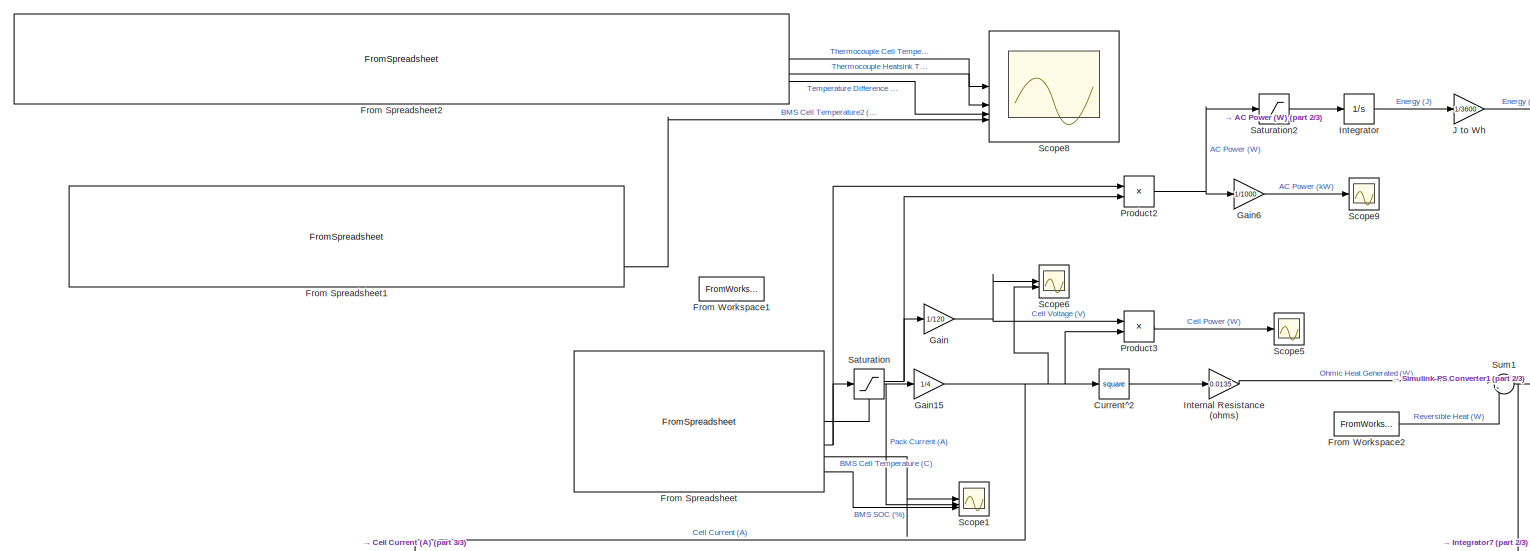
[diagram: root canvas - part 1/3, top left region]
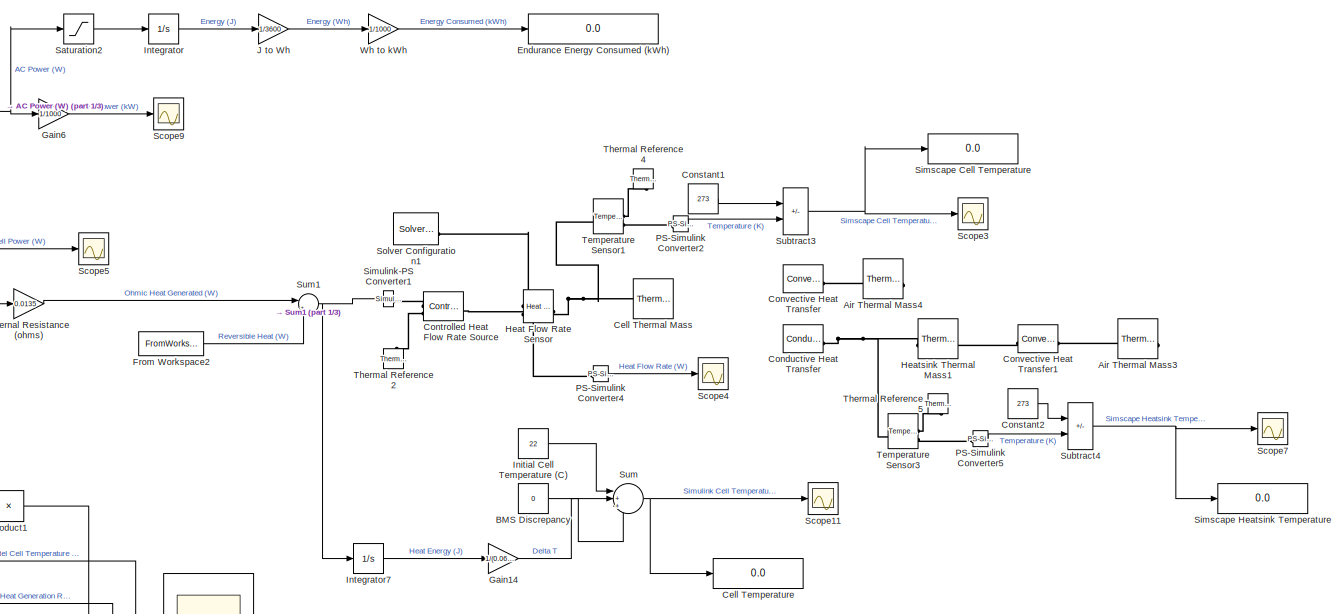
[diagram: root canvas - part 2/3, top right region]
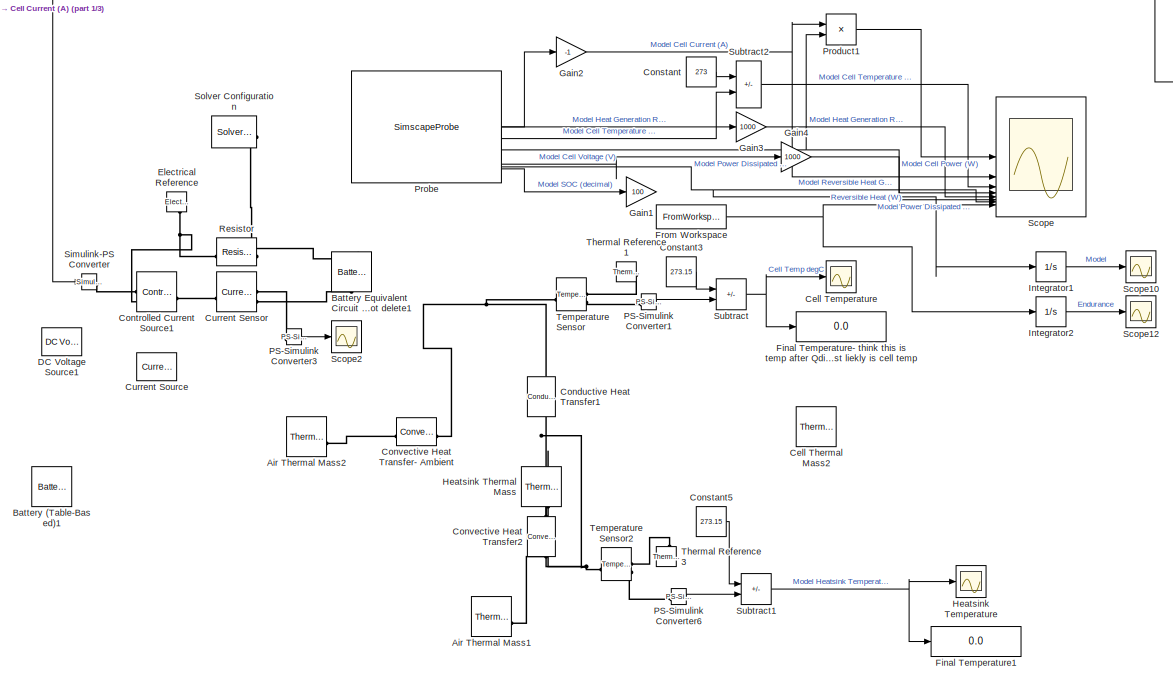
[diagram: root canvas - part 3/3, bottom center region]
MODEL slx_51ffd3849e53
KIND model
CONFIG AbsTol = auto
CONFIG EnableMultiTasking = off
CONFIG FixedStep = 0.1
CONFIG MaxStep = auto
CONFIG MinStep = auto
CONFIG RelTol = 1e-3
CONFIG SampleTimeConstraint = Unconstrained
CONFIG SolverName = FixedStepAuto
CONFIG StartTime = 503
CONFIG StopTime = 2309
BLOCK [Reference] Air Thermal Mass1  REF=fl_lib/Thermal/Thermal Elements/Thermal Mass
  Commented = on
  NameLocation = top
  SourceBlock = fl_lib/Thermal/Thermal Elements/Thermal Mass
  SourceType = Thermal Mass
BLOCK [Reference] Air Thermal Mass2  REF=fl_lib/Thermal/Thermal Elements/Thermal Mass
  Commented = on
  NameLocation = top
  SourceBlock = fl_lib/Thermal/Thermal Elements/Thermal Mass
  SourceType = Thermal Mass
BLOCK [Reference] Air Thermal Mass3  REF=fl_lib/Thermal/Thermal Elements/Thermal Mass
  Commented = on
  SourceBlock = fl_lib/Thermal/Thermal Elements/Thermal Mass
  SourceType = Thermal Mass
BLOCK [Reference] Air Thermal Mass4  REF=fl_lib/Thermal/Thermal Elements/Thermal Mass
  Commented = on
  SourceBlock = fl_lib/Thermal/Thermal Elements/Thermal Mass
  SourceType = Thermal Mass
BLOCK [Constant] BMS Discrepancy
  Value = 0
BLOCK [Reference] Battery (Table-Based)1  REF=batteryecm_lib/Battery
(Table-Based)
  AttributesFormatString = Molicel:INR_21700_P45B
  LibrarySourceBlock = batt_lib/Cells/Battery\n(Table-Based)
  NameLocation = right
  SourceBlock = batteryecm_lib/Battery\n(Table-Based)
  SourceType = Battery\n(Table-Based)
  Tag = {'toolbox/physmod/battery/shared_library/m/batteryecm_lib_parts';'Battery__Table_Based_/Molicel/INR_21700_P45B.xml'}
BLOCK [Reference] Battery Equivalent Circuit A2 do not delete1  REF=batt_lib/Cells/Battery Equivalent
Circuit
  NameLocation = right
  SourceBlock = batt_lib/Cells/Battery Equivalent\nCircuit
  SourceType = Battery Equivalent\nCircuit
BLOCK [Display] Cell Temperature
  Decimation = 1
BLOCK [Scope] Cell Temperature 
  Commented = on
  Floating = off
  NumInputPorts = 1
  ScopeSpecificationString = Simulink.scopes.TimeScopeBlockCfg('CurrentConfiguration', extmgr.ConfigurationSet(extmgr.Configuration('Core','General UI',true),extmgr.Configuration('Core','Source UI',true),extmgr.Configuration('Sources','WiredSimulink',true,'DataLoggingVariableName','ScopeData1'),extmgr.Configuration('Visuals','Time Domain',true,'SerializedDisplays',{struct('MinYLimReal','28.29903','MaxYLimReal','55.30877','YLa...<+1498ch>
BLOCK [Reference] Cell Thermal Mass  REF=fl_lib/Thermal/Thermal Elements/Thermal Mass
  SourceBlock = fl_lib/Thermal/Thermal Elements/Thermal Mass
  SourceType = Thermal Mass
BLOCK [Reference] Cell Thermal Mass2  REF=fl_lib/Thermal/Thermal Elements/Thermal Mass
  Commented = on
  SourceBlock = fl_lib/Thermal/Thermal Elements/Thermal Mass
  SourceType = Thermal Mass
BLOCK [Reference] Conductive Heat Transfer  REF=fl_lib/Thermal/Thermal Elements/Conductive Heat
Transfer
  Commented = on
  SourceBlock = fl_lib/Thermal/Thermal Elements/Conductive Heat\nTransfer
  SourceType = Conductive Heat\nTransfer
BLOCK [Reference] Conductive Heat Transfer1  REF=fl_lib/Thermal/Thermal Elements/Conductive Heat
Transfer
  Commented = on
  NameLocation = left
  SourceBlock = fl_lib/Thermal/Thermal Elements/Conductive Heat\nTransfer
  SourceType = Conductive Heat\nTransfer
BLOCK [Constant] Constant
  Value = 273
BLOCK [Constant] Constant1
  Value = 273
BLOCK [Constant] Constant2
  Commented = on
  Value = 273
BLOCK [Constant] Constant3
  Commented = on
  Value = 273.15
BLOCK [Constant] Constant5
  Commented = on
  Value = 273.15
BLOCK [Reference] Controlled Current Source1  REF=fl_lib/Electrical/Electrical Sources/Controlled Current
Source
  SourceBlock = fl_lib/Electrical/Electrical Sources/Controlled Current\nSource
  SourceType = Controlled Current\nSource
BLOCK [Reference] Controlled Heat Flow Rate Source  REF=fl_lib/Thermal/Thermal Sources/Controlled Heat Flow
Rate Source
  SourceBlock = fl_lib/Thermal/Thermal Sources/Controlled Heat Flow\nRate Source
  SourceType = Controlled Heat Flow\nRate Source
BLOCK [Reference] Convective Heat Transfer  REF=fl_lib/Thermal/Thermal Elements/Convective Heat
Transfer
  Commented = on
  SourceBlock = fl_lib/Thermal/Thermal Elements/Convective Heat\nTransfer
  SourceType = Convective Heat\nTransfer
BLOCK [Reference] Convective Heat Transfer- Ambient  REF=fl_lib/Thermal/Thermal Elements/Convective Heat
Transfer
  Commented = on
  NameLocation = top
  SourceBlock = fl_lib/Thermal/Thermal Elements/Convective Heat\nTransfer
  SourceType = Convective Heat\nTransfer
BLOCK [Reference] Convective Heat Transfer1  REF=fl_lib/Thermal/Thermal Elements/Convective Heat
Transfer
  Commented = on
  SourceBlock = fl_lib/Thermal/Thermal Elements/Convective Heat\nTransfer
  SourceType = Convective Heat\nTransfer
BLOCK [Reference] Convective Heat Transfer2  REF=fl_lib/Thermal/Thermal Elements/Convective Heat
Transfer
  Commented = on
  NameLocation = left
  SourceBlock = fl_lib/Thermal/Thermal Elements/Convective Heat\nTransfer
  SourceType = Convective Heat\nTransfer
BLOCK [Reference] Current Sensor  REF=fl_lib/Electrical/Electrical Sensors/Current Sensor
  SourceBlock = fl_lib/Electrical/Electrical Sensors/Current Sensor
  SourceType = Current Sensor
BLOCK [Reference] Current Source  REF=ee_lib/Sources/Current Source
  Commented = on
  SourceBlock = ee_lib/Sources/Current Source
  SourceType = Current Source
BLOCK [Math] Current^2 
  Operator = square
BLOCK [Reference] DC Voltage Source1  REF=ee_lib/Additional
Components/SPICE Sources/DC Voltage Source
  SourceBlock = ee_lib/Additional\nComponents/SPICE Sources/DC Voltage Source
  SourceType = DC Voltage Source
BLOCK [Reference] Electrical Reference  REF=fl_lib/Electrical/Electrical Elements/Electrical Reference
  NameLocation = left
  SourceBlock = fl_lib/Electrical/Electrical Elements/Electrical Reference
  SourceType = Electrical Reference
BLOCK [Display] Endurance Energy Consumed (kWh) 
  Decimation = 1
BLOCK [Display] Final Temperature-  think this is temp after Qdissipated to ambient?most liekly is cell temp
  Commented = on
  Decimation = 1
BLOCK [Display] Final Temperature1
  Commented = on
  Decimation = 1
BLOCK [FromSpreadsheet] From Spreadsheet
  FileName = <userpath>\OneDrive - University of California, Davis\Documents\GitHub\FE12-Accumulator\FE12\FE11 Data Analysis\FE11 Endurance Full Data V2.xlsx
BLOCK [FromSpreadsheet] From Spreadsheet1
  Commented = on
  FileName = <userpath>\OneDrive\Escritorio\FE11\Accumulator\Documents\Full Data - Chris' Run .xlsx
  Range = A1:E1037
BLOCK [FromSpreadsheet] From Spreadsheet2
  Commented = on
  FileName = <userpath>\OneDrive\Escritorio\FE11\Accumulator\Documents\FE10 Track Day Thermocouples Data- Chris' Run.xlsx
  Range = A1:D541
BLOCK [FromWorkspace] From Workspace
  VariableName = revheat_time
BLOCK [FromWorkspace] From Workspace1
  Commented = on
  VariableName = CurrentData
BLOCK [FromWorkspace] From Workspace2
  VariableName = revheat_time
BLOCK [Gain] Gain
  Gain = 1/120
BLOCK [Gain] Gain1
  Gain = 100
BLOCK [Gain] Gain14
  Gain = 1/(0.06492*1360)
BLOCK [Gain] Gain15
  Gain = 1/4
BLOCK [Gain] Gain2
  Gain = -1
BLOCK [Gain] Gain3
  Gain = 1000
BLOCK [Gain] Gain4
  Gain = 1000
BLOCK [Gain] Gain6
  Gain = 1/1000
BLOCK [Reference] Heat Flow Rate Sensor  REF=fl_lib/Thermal/Thermal Sensors/Heat Flow Rate
Sensor
  SourceBlock = fl_lib/Thermal/Thermal Sensors/Heat Flow Rate\nSensor
  SourceType = Heat Flow Rate\nSensor
BLOCK [Scope] Heatsink Temperature
  Commented = on
  Floating = off
  NumInputPorts = 1
  ScopeSpecificationString = Simulink.scopes.TimeScopeBlockCfg('CurrentConfiguration', extmgr.ConfigurationSet(extmgr.Configuration('Core','General UI',true),extmgr.Configuration('Core','Source UI',true),extmgr.Configuration('Sources','WiredSimulink',true,'DataLoggingVariableName','ScopeData4'),extmgr.Configuration('Visuals','Time Domain',true,'SerializedDisplays',{struct('MinYLimReal','24.6227','MaxYLimReal','46.89574','YLab...<+1458ch>
BLOCK [Reference] Heatsink Thermal Mass  REF=fl_lib/Thermal/Thermal Elements/Thermal Mass
  Commented = on
  NameLocation = left
  SourceBlock = fl_lib/Thermal/Thermal Elements/Thermal Mass
  SourceType = Thermal Mass
BLOCK [Reference] Heatsink Thermal Mass1  REF=fl_lib/Thermal/Thermal Elements/Thermal Mass
  Commented = on
  SourceBlock = fl_lib/Thermal/Thermal Elements/Thermal Mass
  SourceType = Thermal Mass
BLOCK [Constant] Initial Cell Temperature (C)
  Value = 22
BLOCK [Integrator] Integrator
BLOCK [Integrator] Integrator1
BLOCK [Integrator] Integrator2
BLOCK [Integrator] Integrator7
BLOCK [Gain] Internal Resistance (ohms)
  Gain = 0.0135
BLOCK [Gain] J to Wh
  Gain = 1/3600
BLOCK [Reference] PS-Simulink Converter1  REF=nesl_utility/PS-Simulink
Converter
  Commented = on
  SourceBlock = nesl_utility/PS-Simulink\nConverter
  SourceType = PS-Simulink\nConverter
BLOCK [Reference] PS-Simulink Converter2  REF=nesl_utility/PS-Simulink
Converter
  SourceBlock = nesl_utility/PS-Simulink\nConverter
  SourceType = PS-Simulink\nConverter
BLOCK [Reference] PS-Simulink Converter3  REF=nesl_utility/PS-Simulink
Converter
  SourceBlock = nesl_utility/PS-Simulink\nConverter
  SourceType = PS-Simulink\nConverter
BLOCK [Reference] PS-Simulink Converter4  REF=nesl_utility/PS-Simulink
Converter
  SourceBlock = nesl_utility/PS-Simulink\nConverter
  SourceType = PS-Simulink\nConverter
BLOCK [Reference] PS-Simulink Converter5  REF=nesl_utility/PS-Simulink
Converter
  Commented = on
  SourceBlock = nesl_utility/PS-Simulink\nConverter
  SourceType = PS-Simulink\nConverter
BLOCK [Reference] PS-Simulink Converter6  REF=nesl_utility/PS-Simulink
Converter
  Commented = on
  SourceBlock = nesl_utility/PS-Simulink\nConverter
  SourceType = PS-Simulink\nConverter
BLOCK [SimscapeProbe] Probe
  BoundBlock = 268
  Variables = {batteryCurrent, batteryTemperature, batteryVoltage, heatGenerationRate, power_dissipated, reversibleHeat, stateOfCharge}
BLOCK [Product] Product1
BLOCK [Product] Product2
BLOCK [Product] Product3
BLOCK [Reference] Resistor  REF=fl_lib/Electrical/Electrical Elements/Resistor
  NameLocation = top
  SourceBlock = fl_lib/Electrical/Electrical Elements/Resistor
  SourceType = Resistor
BLOCK [Saturate] Saturation
  LowerLimit = 0
  UpperLimit = 10^10
BLOCK [Saturate] Saturation2
  LowerLimit = 0
  UpperLimit = 10^10
BLOCK [Scope] Scope
  Floating = off
  NumInputPorts = 9
  ScopeSpecificationString = Simulink.scopes.TimeScopeBlockCfg('CurrentConfiguration', extmgr.ConfigurationSet(extmgr.Configuration('Core','General UI',true),extmgr.Configuration('Core','Source UI',true),extmgr.Configuration('Sources','WiredSimulink',true,'DataLoggingVariableName','ScopeData1'),extmgr.Configuration('Visuals','Time Domain',true,'SerializedDisplays',{struct('MinYLimReal','-3.78033','MaxYLimReal','34.02296','YLa...<+7919ch>
BLOCK [Scope] Scope1
  Floating = off
  NumInputPorts = 3
  ScopeSpecificationString = Simulink.scopes.TimeScopeBlockCfg('CurrentConfiguration', extmgr.ConfigurationSet(extmgr.Configuration('Core','General UI',true),extmgr.Configuration('Core','Source UI',true),extmgr.Configuration('Sources','WiredSimulink',true,'DataLoggingVariableName','ScopeData2'),extmgr.Configuration('Visuals','Time Domain',true),extmgr.Configuration('Tools','Plot Navigation',true),extmgr.Configuration('Tools',...<+40ch>
BLOCK [Scope] Scope10
  Floating = off
  NumInputPorts = 1
  ScopeSpecificationString = Simulink.scopes.TimeScopeBlockCfg('CurrentConfiguration', extmgr.ConfigurationSet(extmgr.Configuration('Core','General UI',true),extmgr.Configuration('Core','Source UI',true),extmgr.Configuration('Sources','WiredSimulink',true,'DataLoggingVariableName','ScopeData1'),extmgr.Configuration('Visuals','Time Domain',true),extmgr.Configuration('Tools','Plot Navigation',true),extmgr.Configuration('Tools',...<+40ch>
BLOCK [Scope] Scope11
  Floating = off
  NumInputPorts = 1
  ScopeSpecificationString = Simulink.scopes.TimeScopeBlockCfg('CurrentConfiguration', extmgr.ConfigurationSet(extmgr.Configuration('Core','General UI',true),extmgr.Configuration('Core','Source UI',true),extmgr.Configuration('Sources','WiredSimulink',true,'DataLoggingVariableName','ScopeData3'),extmgr.Configuration('Visuals','Time Domain',true,'SerializedDisplays',{struct('MinYLimReal','28.84211','MaxYLimReal','50.42097','YLa...<+1474ch>
BLOCK [Scope] Scope12
  Floating = off
  NumInputPorts = 1
  ScopeSpecificationString = Simulink.scopes.TimeScopeBlockCfg('CurrentConfiguration', extmgr.ConfigurationSet(extmgr.Configuration('Core','General UI',true),extmgr.Configuration('Core','Source UI',true),extmgr.Configuration('Sources','WiredSimulink',true,'DataLoggingVariableName','ScopeData2'),extmgr.Configuration('Visuals','Time Domain',true),extmgr.Configuration('Tools','Plot Navigation',true),extmgr.Configuration('Tools',...<+40ch>
BLOCK [Scope] Scope2
  Floating = off
  NumInputPorts = 1
  ScopeSpecificationString = Simulink.scopes.TimeScopeBlockCfg('CurrentConfiguration', extmgr.ConfigurationSet(extmgr.Configuration('Core','General UI',true),extmgr.Configuration('Core','Source UI',true),extmgr.Configuration('Sources','WiredSimulink',true,'DataLoggingVariableName','ScopeData2'),extmgr.Configuration('Visuals','Time Domain',true,'SerializedDisplays',{struct('MinYLimReal','7.4','MaxYLimReal','9.4','YLabelReal','...<+1500ch>
BLOCK [Scope] Scope3
  Floating = off
  NumInputPorts = 1
  ScopeSpecificationString = Simulink.scopes.TimeScopeBlockCfg('CurrentConfiguration', extmgr.ConfigurationSet(extmgr.Configuration('Core','General UI',true),extmgr.Configuration('Core','Source UI',true),extmgr.Configuration('Sources','WiredSimulink',true,'DataLoggingVariableName','ScopeData4'),extmgr.Configuration('Visuals','Time Domain',true,'SerializedDisplays',{struct('MinYLimReal','29.11361','MaxYLimReal','49.47754','YLa...<+1483ch>
BLOCK [Scope] Scope4
  Floating = off
  NumInputPorts = 1
  ScopeSpecificationString = Simulink.scopes.TimeScopeBlockCfg('CurrentConfiguration', extmgr.ConfigurationSet(extmgr.Configuration('Core','General UI',true),extmgr.Configuration('Core','Source UI',true),extmgr.Configuration('Sources','WiredSimulink',true,'DataLoggingVariableName','ScopeData5'),extmgr.Configuration('Visuals','Time Domain',true,'SerializedDisplays',{struct('MinYLimReal','-2.3874','MaxYLimReal','21.48664','YLab...<+1379ch>
BLOCK [Scope] Scope5
  Floating = off
  NumInputPorts = 1
  ScopeSpecificationString = Simulink.scopes.TimeScopeBlockCfg('CurrentConfiguration', extmgr.ConfigurationSet(extmgr.Configuration('Core','General UI',true),extmgr.Configuration('Core','Source UI',true),extmgr.Configuration('Sources','WiredSimulink',true,'DataLoggingVariableName','ScopeData1'),extmgr.Configuration('Visuals','Time Domain',true,'SerializedDisplays',{struct('MinYLimReal','-8.27537','MaxYLimReal','74.4783','YLab...<+1485ch>
BLOCK [Scope] Scope6
  Floating = off
  NumInputPorts = 2
  ScopeSpecificationString = Simulink.scopes.TimeScopeBlockCfg('CurrentConfiguration', extmgr.ConfigurationSet(extmgr.Configuration('Core','General UI',true),extmgr.Configuration('Core','Source UI',true),extmgr.Configuration('Sources','WiredSimulink',true,'DataLoggingVariableName','ScopeData2'),extmgr.Configuration('Visuals','Time Domain',true,'SerializedDisplays',{struct('MinYLimReal','-4.31872','MaxYLimReal','38.86847','YLa...<+1507ch>
BLOCK [Scope] Scope7
  Commented = on
  Floating = off
  NumInputPorts = 1
  ScopeSpecificationString = Simulink.scopes.TimeScopeBlockCfg('CurrentConfiguration', extmgr.ConfigurationSet(extmgr.Configuration('Core','General UI',true),extmgr.Configuration('Core','Source UI',true),extmgr.Configuration('Sources','WiredSimulink',true,'DataLoggingVariableName','ScopeData6'),extmgr.Configuration('Visuals','Time Domain',true,'SerializedDisplays',{struct('MinYLimReal','29.22388','MaxYLimReal','48.48509','YLa...<+1487ch>
BLOCK [Scope] Scope8
  Commented = on
  Floating = off
  NumInputPorts = 4
  ScopeSpecificationString = Simulink.scopes.TimeScopeBlockCfg('CurrentConfiguration', extmgr.ConfigurationSet(extmgr.Configuration('Core','General UI',true),extmgr.Configuration('Core','Source UI',true),extmgr.Configuration('Sources','WiredSimulink',true,'DataLoggingVariableName','ScopeData1'),extmgr.Configuration('Visuals','Time Domain',true),extmgr.Configuration('Tools','Plot Navigation',true),extmgr.Configuration('Tools',...<+40ch>
BLOCK [Scope] Scope9
  Floating = off
  NumInputPorts = 1
  ScopeSpecificationString = Simulink.scopes.TimeScopeBlockCfg('CurrentConfiguration', extmgr.ConfigurationSet(extmgr.Configuration('Core','General UI',true),extmgr.Configuration('Core','Source UI',true),extmgr.Configuration('Sources','WiredSimulink',true,'DataLoggingVariableName','ScopeData1'),extmgr.Configuration('Visuals','Time Domain',true,'SerializedDisplays',{struct('MinYLimReal','-8.27537','MaxYLimReal','74.4783','YLab...<+1485ch>
BLOCK [Display] Simscape Cell Temperature
  Decimation = 1
BLOCK [Display] Simscape Heatsink Temperature
  Commented = on
  Decimation = 1
BLOCK [Reference] Simulink-PS Converter  REF=nesl_utility/Simulink-PS
Converter
  SourceBlock = nesl_utility/Simulink-PS\nConverter
  SourceType = Simulink-PS\nConverter
BLOCK [Reference] Simulink-PS Converter1  REF=nesl_utility/Simulink-PS
Converter
  SourceBlock = nesl_utility/Simulink-PS\nConverter
  SourceType = Simulink-PS\nConverter
BLOCK [Reference] Solver Configuration  REF=nesl_utility/Solver
Configuration
  SourceBlock = nesl_utility/Solver\nConfiguration
  SourceType = Solver\nConfiguration
BLOCK [Reference] Solver Configuration1  REF=nesl_utility/Solver
Configuration
  SourceBlock = nesl_utility/Solver\nConfiguration
  SourceType = Solver\nConfiguration
BLOCK [Sum] Subtract
  Commented = on
  IconShape = rectangular
  Inputs = -+
BLOCK [Sum] Subtract1
  Commented = on
  IconShape = rectangular
  Inputs = -+
BLOCK [Sum] Subtract2
  IconShape = rectangular
  Inputs = -+
BLOCK [Sum] Subtract3
  IconShape = rectangular
  Inputs = -+
BLOCK [Sum] Subtract4
  Commented = on
  IconShape = rectangular
  Inputs = -+
BLOCK [Sum] Sum
  Inputs = |+++
BLOCK [Sum] Sum1
  Inputs = |+-
BLOCK [Reference] Temperature Sensor  REF=fl_lib/Thermal/Thermal Sensors/Temperature Sensor
  Commented = on
  SourceBlock = fl_lib/Thermal/Thermal Sensors/Temperature Sensor
  SourceType = Temperature Sensor
BLOCK [Reference] Temperature Sensor1  REF=fl_lib/Thermal/Thermal Sensors/Temperature Sensor
  SourceBlock = fl_lib/Thermal/Thermal Sensors/Temperature Sensor
  SourceType = Temperature Sensor
BLOCK [Reference] Temperature Sensor2  REF=fl_lib/Thermal/Thermal Sensors/Temperature Sensor
  Commented = on
  SourceBlock = fl_lib/Thermal/Thermal Sensors/Temperature Sensor
  SourceType = Temperature Sensor
BLOCK [Reference] Temperature Sensor3  REF=fl_lib/Thermal/Thermal Sensors/Temperature Sensor
  Commented = on
  SourceBlock = fl_lib/Thermal/Thermal Sensors/Temperature Sensor
  SourceType = Temperature Sensor
BLOCK [Reference] Thermal Reference1  REF=fl_lib/Thermal/Thermal Elements/Thermal Reference
  Commented = on
  NameLocation = top
  SourceBlock = fl_lib/Thermal/Thermal Elements/Thermal Reference
  SourceType = Thermal Reference
BLOCK [Reference] Thermal Reference2  REF=fl_lib/Thermal/Thermal Elements/Thermal Reference
  NameLocation = right
  SourceBlock = fl_lib/Thermal/Thermal Elements/Thermal Reference
  SourceType = Thermal Reference
BLOCK [Reference] Thermal Reference3  REF=fl_lib/Thermal/Thermal Elements/Thermal Reference
  Commented = on
  NameLocation = right
  SourceBlock = fl_lib/Thermal/Thermal Elements/Thermal Reference
  SourceType = Thermal Reference
BLOCK [Reference] Thermal Reference4  REF=fl_lib/Thermal/Thermal Elements/Thermal Reference
  NameLocation = right
  SourceBlock = fl_lib/Thermal/Thermal Elements/Thermal Reference
  SourceType = Thermal Reference
BLOCK [Reference] Thermal Reference5  REF=fl_lib/Thermal/Thermal Elements/Thermal Reference
  Commented = on
  NameLocation = right
  SourceBlock = fl_lib/Thermal/Thermal Elements/Thermal Reference
  SourceType = Thermal Reference
BLOCK [Gain] Wh to kWh
  Gain = 1/1000
LINE BMS Discrepancy:1 -> Sum:3
LINE Constant1:1 -> Subtract3:1
LINE Constant2:1 -> Subtract4:1
LINE Constant3:1 -> Subtract:1
LINE Constant5:1 -> Subtract1:1
LINE Constant:1 -> Subtract2:1
LINE Current^2 :1 -> Internal Resistance (ohms):1
LINE From Spreadsheet1:4 -> Scope8:4
LINE From Spreadsheet2:1 -> Scope8:1
LINE From Spreadsheet2:2 -> Scope8:2
LINE From Spreadsheet2:3 -> Scope8:3
NET From Spreadsheet:1 -> Gain:1, Product2:2
NET From Spreadsheet:2 -> Product2:1, Saturation:1
LINE From Spreadsheet:3 -> Scope1:1
LINE From Spreadsheet:6 -> Scope1:3
LINE From Workspace2:1 -> Sum1:2
NET From Workspace:1 -> Integrator2:1, Scope:9
LINE Gain14:1 -> Sum:2
NET Gain15:1 -> Current^2 :1, Product3:2, Scope6:2, Simulink-PS Converter:1
NET Gain2:1 -> Product1:1, Scope:2
LINE Gain3:1 -> Scope:5
LINE Gain4:1 -> Scope:6
LINE Gain6:1 -> Scope9:1
NET Gain:1 -> Product3:1, Scope6:1
LINE Initial Cell Temperature (C):1 -> Sum:1
LINE Integrator1:1 -> Scope10:1
LINE Integrator2:1 -> Scope12:1
LINE Integrator7:1 -> Gain14:1
LINE Integrator:1 -> J to Wh:1
LINE Internal Resistance (ohms):1 -> Sum1:1
LINE J to Wh:1 -> Wh to kWh:1
LINE PS-Simulink Converter1:1 -> Subtract:2
LINE PS-Simulink Converter2:1 -> Subtract3:2
LINE PS-Simulink Converter3:1 -> Scope2:1
LINE PS-Simulink Converter4:1 -> Scope4:1
LINE PS-Simulink Converter5:1 -> Subtract4:2
LINE PS-Simulink Converter6:1 -> Subtract1:2
LINE Probe:1 -> Gain2:1
LINE Probe:2 -> Subtract2:2
NET Probe:3 -> Product1:2, Scope:4
LINE Probe:4 -> Gain3:1
LINE Probe:5 -> Gain4:1
NET Probe:6 -> Integrator1:1, Scope:7
LINE Probe:7 -> Gain1:1
LINE Product1:1 -> Scope:1
NET Product2:1 -> Gain6:1, Saturation2:1
LINE Product3:1 -> Scope5:1
LINE Saturation2:1 -> Integrator:1
NET Saturation:1 -> Gain15:1, Scope1:2
NET Subtract1:1 -> Final Temperature1:1, Heatsink Temperature:1
LINE Subtract2:1 -> Scope:3
NET Subtract3:1 -> Scope3:1, Simscape Cell Temperature:1
NET Subtract4:1 -> Scope7:1, Simscape Heatsink Temperature:1
NET Subtract:1 -> Cell Temperature :1, Final Temperature-  think this is temp after Qdissipated to ambient?most liekly is cell temp:1
NET Sum1:1 -> Integrator7:1, Simulink-PS Converter1:1
NET Sum:1 -> Cell Temperature:1, Scope11:1
LINE Wh to kWh:1 -> Endurance Energy Consumed (kWh) :1
PLINE Air Thermal Mass1:LConn1 -- Convective Heat Transfer2:RConn1
PLINE Air Thermal Mass2:LConn1 -- Convective Heat Transfer- Ambient:RConn1
PLINE Air Thermal Mass3:LConn1 -- Convective Heat Transfer1:RConn1
PLINE Air Thermal Mass4:LConn1 -- Convective Heat Transfer:RConn1
PNET net1: Battery Equivalent Circuit A2 do not delete1:LConn1 -- Resistor:LConn1 -- Solver Configuration:RConn1
PLINE Battery Equivalent Circuit A2 do not delete1:RConn1 -- Current Sensor:RConn2
PNET net2: Cell Thermal Mass:LConn1 -- Heat Flow Rate Sensor:RConn2 -- Temperature Sensor1:LConn1
PNET net3: Conductive Heat Transfer1:LConn1 -- Convective Heat Transfer- Ambient:LConn1 -- Temperature Sensor:LConn1
PNET net4: Conductive Heat Transfer1:RConn1 -- Heatsink Thermal Mass:LConn1 -- Temperature Sensor2:LConn1
PNET net5: Conductive Heat Transfer:RConn1 -- Heatsink Thermal Mass1:LConn1 -- Temperature Sensor3:LConn1
PLINE Controlled Current Source1:LConn1 -- Current Sensor:LConn1
PLINE Controlled Current Source1:RConn1 -- Simulink-PS Converter:RConn1
PNET net6: Controlled Current Source1:RConn2 -- Electrical Reference:LConn1 -- Resistor:RConn1
PNET net7: Controlled Heat Flow Rate Source:LConn1 -- Heat Flow Rate Sensor:LConn1 -- Solver Configuration1:RConn1
PLINE Controlled Heat Flow Rate Source:RConn1 -- Simulink-PS Converter1:RConn1
PLINE Controlled Heat Flow Rate Source:RConn2 -- Thermal Reference2:LConn1
PLINE Convective Heat Transfer1:LConn1 -- Heatsink Thermal Mass1:RConn1
PLINE Convective Heat Transfer2:LConn1 -- Heatsink Thermal Mass:RConn1
PLINE Current Sensor:RConn1 -- PS-Simulink Converter3:LConn1
PLINE Heat Flow Rate Sensor:RConn1 -- PS-Simulink Converter4:LConn1
PLINE PS-Simulink Converter1:LConn1 -- Temperature Sensor:RConn2
PLINE PS-Simulink Converter2:LConn1 -- Temperature Sensor1:RConn2
PLINE PS-Simulink Converter5:LConn1 -- Temperature Sensor3:RConn2
PLINE PS-Simulink Converter6:LConn1 -- Temperature Sensor2:RConn2
PLINE Temperature Sensor1:RConn1 -- Thermal Reference4:LConn1
PLINE Temperature Sensor2:RConn1 -- Thermal Reference3:LConn1
PLINE Temperature Sensor3:RConn1 -- Thermal Reference5:LConn1
PLINE Temperature Sensor:RConn1 -- Thermal Reference1:LConn1
note: NET lines group one-source signal fan-out (src -> all destinations, sorted); 1:1 wires keep LINE; PNET lines group multi-terminal physical nets as a canonical sorted terminal list (undirected conserving connections); 2-terminal nets keep the pairwise PLINE form
